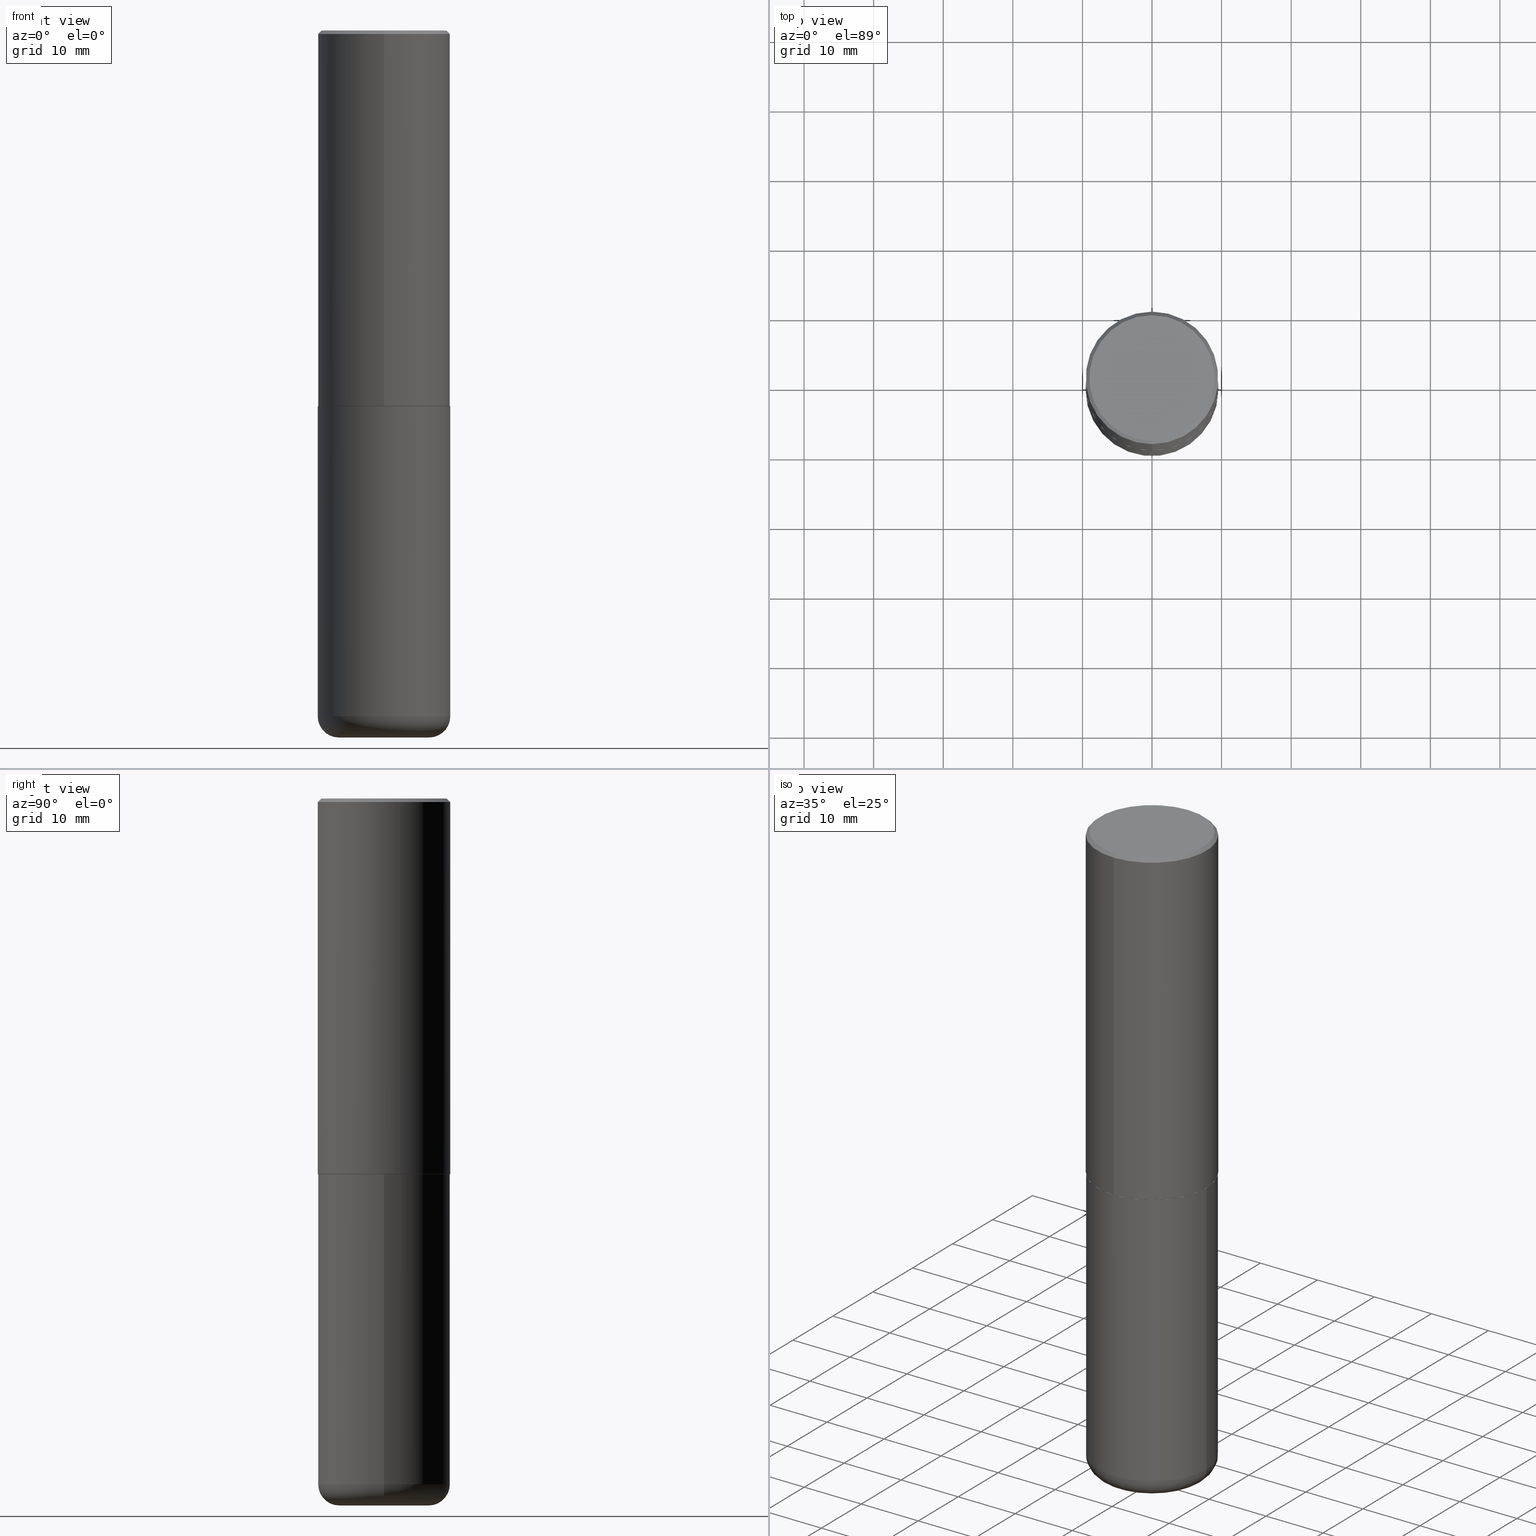
[diagram: canonical four-view strip — front | top / right | iso, engineering-drawing reading convention]
A machine part, canonical four-view strip (front | top / right | iso — engineering-drawing reading convention). The complete STEP part file that produces these views, byte-faithful:
ISO-10303-21;
HEADER;
FILE_DESCRIPTION (( 'STEP AP203' ),
    '1' );
FILE_NAME ('77257.STEP',
    '2024-03-06T16:41:39',
    ( '' ),
    ( '' ),
    'SwSTEP 2.0',
    'SolidWorks 2023',
    '' );
FILE_SCHEMA (( 'CONFIG_CONTROL_DESIGN' ));
ENDSEC;

DATA;
#1 = VERTEX_POINT ( 'NONE', #11 ) ;
#2 = DIRECTION ( 'NONE',  ( -6.982962677686265922E-15, -1.000000000000000000, 3.492725745712017407E-15 ) ) ;
#3 = DIRECTION ( 'NONE',  ( -2.445468806185136877E-29, 3.491481338843145188E-15, 1.000000000000000000 ) ) ;
#4 = PERSON_AND_ORGANIZATION ( #336, #333 ) ;
#5 = CIRCLE ( 'NONE', #402, 0.3750000000000002776 ) ;
#6 = EDGE_LOOP ( 'NONE', ( #59, #84 ) ) ;
#7 = ORIENTED_EDGE ( 'NONE', *, *, #187, .F. ) ;
#8 = VERTEX_POINT ( 'NONE', #155 ) ;
#9 = TOROIDAL_SURFACE ( 'NONE', #83, 0.2550000000000000044, 0.1200000000000001898 ) ;
#10 = PERSON_AND_ORGANIZATION ( #336, #333 ) ;
#11 = CARTESIAN_POINT ( 'NONE',  ( 2.548781377355487507E-15, 0.3549999999999999822, -1.175448187937810043E-15 ) ) ;
#12 = CARTESIAN_POINT ( 'NONE',  ( 5.196621213143415268E-29, -7.419397845041683624E-15, -2.125000000000000000 ) ) ;
#13 = AXIS2_PLACEMENT_3D ( 'NONE', #89, #291, #181 ) ;
#14 = ORIENTED_EDGE ( 'NONE', *, *, #87, .F. ) ;
#15 = DATE_AND_TIME ( #378, #185 ) ;
#16 = EDGE_CURVE ( 'NONE', #347, #224, #57, .T. ) ;
#17 = DIRECTION ( 'NONE',  ( -2.445468806185136597E-29, 3.491481338843145583E-15, 1.000000000000000000 ) ) ;
#18 = FACE_OUTER_BOUND ( 'NONE', #213, .T. ) ;
#19 = CARTESIAN_POINT ( 'NONE',  ( 0.000000000000000000, 0.000000000000000000, 0.000000000000000000 ) ) ;
#20 = ORIENTED_EDGE ( 'NONE', *, *, #364, .T. ) ;
#21 = DIRECTION ( 'NONE',  ( 7.105427357601001859E-15, 1.000000000000000000, -3.491481338843145583E-15 ) ) ;
#22 = AXIS2_PLACEMENT_3D ( 'NONE', #19, #141, #312 ) ;
#23 = EDGE_CURVE ( 'NONE', #8, #409, #415, .T. ) ;
#24 = DIRECTION ( 'NONE',  ( 1.000000000000000000, -6.982962677686263555E-15, 4.883557194083111219E-29 ) ) ;
#25 = DIRECTION ( 'NONE',  ( -2.445468806185136597E-29, 3.491481338843145583E-15, 1.000000000000000000 ) ) ;
#26 = ORIENTED_EDGE ( 'NONE', *, *, #159, .T. ) ;
#27 = DIRECTION ( 'NONE',  ( -6.982962677686265922E-15, -1.000000000000000000, 3.492725745712017407E-15 ) ) ;
#28 = VECTOR ( 'NONE', #46, 39.37007874015748143 ) ;
#29 = EDGE_LOOP ( 'NONE', ( #331, #92, #234, #305 ) ) ;
#30 = CARTESIAN_POINT ( 'NONE',  ( 2.657429831742826359E-15, 0.3739999999999925606, -2.125000000000001332 ) ) ;
#31 =( CONVERSION_BASED_UNIT ( 'INCH', #396 ) LENGTH_UNIT ( ) NAMED_UNIT ( #355 ) );
#32 = ORIENTED_EDGE ( 'NONE', *, *, #85, .F. ) ;
#33 = AXIS2_PLACEMENT_3D ( 'NONE', #282, #113, #381 ) ;
#34 = ADVANCED_FACE ( 'NONE', ( #179 ), #375, .T. ) ;
#35 = AXIS2_PLACEMENT_3D ( 'NONE', #97, #369, #2 ) ;
#36 = COORDINATED_UNIVERSAL_TIME_OFFSET ( 5, 0, .BEHIND. ) ;
#37 = VERTEX_POINT ( 'NONE', #418 ) ;
#38 =( NAMED_UNIT ( * ) SI_UNIT ( $, .STERADIAN. ) SOLID_ANGLE_UNIT ( ) );
#39 = FACE_OUTER_BOUND ( 'NONE', #321, .T. ) ;
#40 = VERTEX_POINT ( 'NONE', #327 ) ;
#41 = DIRECTION ( 'NONE',  ( 1.000000000000000000, 0.000000000000000000, 0.000000000000000000 ) ) ;
#42 = DIRECTION ( 'NONE',  ( 2.438088387897960049E-29, -3.491481338843145188E-15, -1.000000000000000000 ) ) ;
#43 = AXIS2_PLACEMENT_3D ( 'NONE', #44, #350, #157 ) ;
#44 = CARTESIAN_POINT ( 'NONE',  ( 9.488418967998330085E-29, -1.354694759471140570E-14, -3.880000000000000338 ) ) ;
#45 = CC_DESIGN_DATE_AND_TIME_ASSIGNMENT ( #76, #373, ( #72 ) ) ;
#46 = DIRECTION ( 'NONE',  ( -2.444599841513017620E-29, 3.492725745712018196E-15, 1.000000000000000000 ) ) ;
#47 = ADVANCED_FACE ( 'NONE', ( #39 ), #266, .T. ) ;
#48 = PERSON_AND_ORGANIZATION_ROLE ( 'design_supplier' ) ;
#49 = ORIENTED_EDGE ( 'NONE', *, *, #138, .F. ) ;
#50 = FACE_OUTER_BOUND ( 'NONE', #78, .T. ) ;
#51 = CIRCLE ( 'NONE', #278, 0.3750000000000001110 ) ;
#52 = CIRCLE ( 'NONE', #160, 0.3739999999999999991 ) ;
#53 = ORIENTED_EDGE ( 'NONE', *, *, #324, .F. ) ;
#54 = APPROVAL_DATE_TIME ( #15, #314 ) ;
#55 = ORIENTED_EDGE ( 'NONE', *, *, #335, .F. ) ;
#56 = CARTESIAN_POINT ( 'NONE',  ( 0.2550000000000000044, -1.574658083818258381E-14, -4.000000000000000888 ) ) ;
#57 = CIRCLE ( 'NONE', #208, 0.3750000000000002776 ) ;
#58 = AXIS2_PLACEMENT_3D ( 'NONE', #63, #189, #183 ) ;
#59 = ORIENTED_EDGE ( 'NONE', *, *, #364, .F. ) ;
#60 = EDGE_LOOP ( 'NONE', ( #390, #26 ) ) ;
#61 = AXIS2_PLACEMENT_3D ( 'NONE', #262, #69, #65 ) ;
#62 = FACE_OUTER_BOUND ( 'NONE', #392, .T. ) ;
#63 = CARTESIAN_POINT ( 'NONE',  ( 5.196621213143415268E-29, -7.419397845041683624E-15, -2.125000000000000000 ) ) ;
#64 = VECTOR ( 'NONE', #3, 39.37007874015748143 ) ;
#65 = DIRECTION ( 'NONE',  ( 1.000000000000000000, -6.982962677686265922E-15, 4.876176775795935793E-29 ) ) ;
#66 = VERTEX_POINT ( 'NONE', #362 ) ;
#67 = DIRECTION ( 'NONE',  ( -2.445468806185136877E-29, 3.491481338843145188E-15, 1.000000000000000000 ) ) ;
#68 = DIRECTION ( 'NONE',  ( -2.444599841513017620E-29, 3.492725745712017802E-15, 1.000000000000000000 ) ) ;
#69 = DIRECTION ( 'NONE',  ( -2.445468806185136597E-29, 3.491481338843145583E-15, 1.000000000000000000 ) ) ;
#70 = EDGE_LOOP ( 'NONE', ( #329, #239, #246, #14 ) ) ;
#71 =( GEOMETRIC_REPRESENTATION_CONTEXT ( 3 ) GLOBAL_UNCERTAINTY_ASSIGNED_CONTEXT ( ( #163 ) ) GLOBAL_UNIT_ASSIGNED_CONTEXT ( ( #31, #182, #38 ) ) REPRESENTATION_CONTEXT ( 'NONE', 'WORKASPACE' ) );
#72 = SECURITY_CLASSIFICATION ( '', '', #401 ) ;
#73 = CARTESIAN_POINT ( 'NONE',  ( 4.889199683026055945E-31, -6.985451491424065481E-17, -0.02000000000000008715 ) ) ;
#74 = DIRECTION ( 'NONE',  ( -2.445468806185136597E-29, 3.491481338843145583E-15, 1.000000000000000000 ) ) ;
#75 = PRODUCT ( '77257', '77257', '', ( #96 ) ) ;
#76 = DATE_AND_TIME ( #340, #259 ) ;
#77 = DESIGN_CONTEXT ( 'detailed design', #310, 'design' ) ;
#78 = EDGE_LOOP ( 'NONE', ( #7, #261, #111, #116 ) ) ;
#79 = AXIS2_PLACEMENT_3D ( 'NONE', #100, #367, #156 ) ;
#80 = ORIENTED_EDGE ( 'NONE', *, *, #85, .T. ) ;
#81 = DIRECTION ( 'NONE',  ( -6.982962677686266711E-15, -1.000000000000000000, 3.652203200085913145E-15 ) ) ;
#82 = DIRECTION ( 'NONE',  ( -2.445468806185136597E-29, 3.491481338843145583E-15, 1.000000000000000000 ) ) ;
#83 = AXIS2_PLACEMENT_3D ( 'NONE', #178, #74, #24 ) ;
#84 = ORIENTED_EDGE ( 'NONE', *, *, #370, .F. ) ;
#85 = EDGE_CURVE ( 'NONE', #1, #8, #122, .T. ) ;
#86 = ORIENTED_EDGE ( 'NONE', *, *, #265, .F. ) ;
#87 = EDGE_CURVE ( 'NONE', #37, #224, #164, .T. ) ;
#88 = FACE_OUTER_BOUND ( 'NONE', #60, .T. ) ;
#89 = CARTESIAN_POINT ( 'NONE',  ( 0.000000000000000000, 0.000000000000000000, 0.000000000000000000 ) ) ;
#90 = APPROVAL_DATE_TIME ( #251, #374 ) ;
#91 = CARTESIAN_POINT ( 'NONE',  ( 0.3750000000000001110, -1.616555859884375729E-14, -3.880000000000000338 ) ) ;
#92 = ORIENTED_EDGE ( 'NONE', *, *, #187, .T. ) ;
#93 = AXIS2_PLACEMENT_3D ( 'NONE', #140, #204, #299 ) ;
#94 = AXIS2_PLACEMENT_3D ( 'NONE', #231, #25, #293 ) ;
#95 = ORIENTED_EDGE ( 'NONE', *, *, #102, .T. ) ;
#96 = MECHANICAL_CONTEXT ( 'NONE', #205, 'mechanical' ) ;
#97 = CARTESIAN_POINT ( 'NONE',  ( -1.576020116281570290E-45, 2.251741140787182714E-31, 6.446945178995578068E-17 ) ) ;
#98 = CARTESIAN_POINT ( 'NONE',  ( 2.618611004132351200E-15, 0.3750000000000000555, -0.02000000000000139513 ) ) ;
#99 = DIRECTION ( 'NONE',  ( 6.982962677686265922E-15, 1.000000000000000000, -3.494488891895535640E-15 ) ) ;
#100 = CARTESIAN_POINT ( 'NONE',  ( 4.889199683026055945E-31, -6.985451491424065481E-17, -0.02000000000000008715 ) ) ;
#101 = LOCAL_TIME ( 11, 41, 39.00000000000000000, #287 ) ;
#102 = EDGE_CURVE ( 'NONE', #409, #8, #51, .T. ) ;
#103 = LINE ( 'NONE', #338, #318 ) ;
#104 = PERSON_AND_ORGANIZATION_ROLE ( 'creator' ) ;
#105 = ORIENTED_EDGE ( 'NONE', *, *, #399, .F. ) ;
#106 = DIRECTION ( 'NONE',  ( -2.445468806185136597E-29, 3.491481338843145583E-15, 1.000000000000000000 ) ) ;
#107 = FACE_OUTER_BOUND ( 'NONE', #194, .T. ) ;
#108 = APPROVAL_STATUS ( 'not_yet_approved' ) ;
#109 = APPROVAL_STATUS ( 'not_yet_approved' ) ;
#110 = CC_DESIGN_APPROVAL ( #342, ( #365 ) ) ;
#111 = ORIENTED_EDGE ( 'NONE', *, *, #320, .T. ) ;
#112 = VERTEX_POINT ( 'NONE', #56 ) ;
#113 = DIRECTION ( 'NONE',  ( -2.444599841513017620E-29, 3.492725745712017802E-15, 1.000000000000000000 ) ) ;
#114 = ADVANCED_FACE ( 'NONE', ( #275 ), #388, .T. ) ;
#115 = AXIS2_PLACEMENT_3D ( 'NONE', #285, #298, #352 ) ;
#116 = ORIENTED_EDGE ( 'NONE', *, *, #159, .F. ) ;
#117 = CARTESIAN_POINT ( 'NONE',  ( -0.3750000000000000555, 2.664535259100376091E-15, -1.844600658845589598E-29 ) ) ;
#118 = LINE ( 'NONE', #212, #235 ) ;
#119 = AXIS2_PLACEMENT_3D ( 'NONE', #171, #277, #243 ) ;
#120 = AXIS2_PLACEMENT_3D ( 'NONE', #341, #309, #167 ) ;
#121 = ORIENTED_EDGE ( 'NONE', *, *, #16, .T. ) ;
#122 = LINE ( 'NONE', #98, #219 ) ;
#123 = CALENDAR_DATE ( 2024, 6, 3 ) ;
#124 =( LENGTH_UNIT ( ) NAMED_UNIT ( * ) SI_UNIT ( $, .METRE. ) );
#125 = ORIENTED_EDGE ( 'NONE', *, *, #283, .F. ) ;
#126 = CARTESIAN_POINT ( 'NONE',  ( 0.3750000000000000555, -2.618611004132350016E-15, 1.828566290923476203E-29 ) ) ;
#127 = CARTESIAN_POINT ( 'NONE',  ( -0.3750000000000001110, -1.088241233561102684E-14, -3.880000000000000338 ) ) ;
#128 = CARTESIAN_POINT ( 'NONE',  ( 2.664535259100376880E-15, 0.3750000000000002220, -1.309772154642007612E-15 ) ) ;
#129 = DATE_TIME_ROLE ( 'creation_date' ) ;
#130 = AXIS2_PLACEMENT_3D ( 'NONE', #73, #196, #99 ) ;
#131 = CARTESIAN_POINT ( 'NONE',  ( -0.2550000000000000044, -1.151822685739767881E-14, -4.000000000000000888 ) ) ;
#132 = CIRCLE ( 'NONE', #35, 0.3549999999999999822 ) ;
#133 = CC_DESIGN_PERSON_AND_ORGANIZATION_ASSIGNMENT ( #263, #268, ( #72 ) ) ;
#134 = DIRECTION ( 'NONE',  ( -2.445468806185136597E-29, 3.491481338843145583E-15, 1.000000000000000000 ) ) ;
#135 = EDGE_CURVE ( 'NONE', #151, #386, #242, .T. ) ;
#136 = ORIENTED_EDGE ( 'NONE', *, *, #135, .T. ) ;
#137 = CARTESIAN_POINT ( 'NONE',  ( -0.2550000000000000044, -1.173506361852314940E-14, -3.880000000000000338 ) ) ;
#138 = EDGE_CURVE ( 'NONE', #347, #8, #356, .T. ) ;
#139 = EDGE_CURVE ( 'NONE', #40, #217, #363, .T. ) ;
#140 = CARTESIAN_POINT ( 'NONE',  ( 2.478951750578624209E-15, 0.3549999999999999822, -1.207682913832788389E-15 ) ) ;
#141 = DIRECTION ( 'NONE',  ( -2.444599841513017620E-29, 3.492725745712017802E-15, 1.000000000000000000 ) ) ;
#142 = ORIENTED_EDGE ( 'NONE', *, *, #283, .T. ) ;
#143 = APPROVAL_PERSON_ORGANIZATION ( #4, #374, #389 ) ;
#144 = AXIS2_PLACEMENT_3D ( 'NONE', #236, #134, #372 ) ;
#145 = EDGE_CURVE ( 'NONE', #37, #66, #52, .T. ) ;
#146 = EDGE_LOOP ( 'NONE', ( #382, #222 ) ) ;
#147 = ORIENTED_EDGE ( 'NONE', *, *, #324, .T. ) ;
#148 = APPLICATION_PROTOCOL_DEFINITION ( 'international standard', 'config_control_design', 1994, #205 ) ;
#149 = CLOSED_SHELL ( 'NONE', ( #114, #286, #47, #250, #177, #34, #344, #152 ) ) ;
#150 = AXIS2_PLACEMENT_3D ( 'NONE', #404, #17, #227 ) ;
#151 = VERTEX_POINT ( 'NONE', #131 ) ;
#152 = ADVANCED_FACE ( 'NONE', ( #18 ), #201, .F. ) ;
#153 = CARTESIAN_POINT ( 'NONE',  ( -2.572686749164324336E-15, -0.3750000000000001665, -0.01999999999999877570 ) ) ;
#154 = FACE_OUTER_BOUND ( 'NONE', #6, .T. ) ;
#155 = CARTESIAN_POINT ( 'NONE',  ( 2.618611004132351200E-15, 0.3750000000000000555, -0.02000000000000139513 ) ) ;
#156 = DIRECTION ( 'NONE',  ( 6.982962677686265922E-15, 1.000000000000000000, -3.494488891895535640E-15 ) ) ;
#157 = DIRECTION ( 'NONE',  ( 1.000000000000000000, -6.982962677686266711E-15, 0.000000000000000000 ) ) ;
#158 = DIRECTION ( 'NONE',  ( -1.000000000000000000, 6.982962677686265922E-15, -4.876176775795935793E-29 ) ) ;
#159 = EDGE_CURVE ( 'NONE', #217, #40, #200, .T. ) ;
#160 = AXIS2_PLACEMENT_3D ( 'NONE', #308, #232, #81 ) ;
#161 = ADVANCED_FACE ( 'NONE', ( #270 ), #184, .T. ) ;
#162 = COORDINATED_UNIVERSAL_TIME_OFFSET ( 5, 0, .BEHIND. ) ;
#163 = UNCERTAINTY_MEASURE_WITH_UNIT (LENGTH_MEASURE( 1.000000000000000082E-05 ), #31, 'distance_accuracy_value', 'NONE');
#164 = LINE ( 'NONE', #411, #316 ) ;
#165 = CLOSED_SHELL ( 'NONE', ( #397, #161, #412, #269, #311, #300 ) ) ;
#166 = CONICAL_SURFACE ( 'NONE', #79, 0.3750000000000001110, 0.7853981633974477239 ) ;
#167 = DIRECTION ( 'NONE',  ( 1.000000000000000000, -6.982962677686263555E-15, 4.883557194083111219E-29 ) ) ;
#168 = DATE_AND_TIME ( #289, #403 ) ;
#169 = DIRECTION ( 'NONE',  ( 1.000000000000000000, -6.982962677686266711E-15, 0.000000000000000000 ) ) ;
#170 = ORIENTED_EDGE ( 'NONE', *, *, #306, .F. ) ;
#171 = CARTESIAN_POINT ( 'NONE',  ( 4.889199683026055945E-31, -6.985451491424065481E-17, -0.02000000000000008715 ) ) ;
#172 = COORDINATED_UNIVERSAL_TIME_OFFSET ( 5, 0, .BEHIND. ) ;
#173 = DIRECTION ( 'NONE',  ( -6.982962677686266711E-15, -1.000000000000000000, 3.491481338843145583E-15 ) ) ;
#174 = ORIENTED_EDGE ( 'NONE', *, *, #383, .F. ) ;
#175 = AXIS2_PLACEMENT_3D ( 'NONE', #193, #42, #158 ) ;
#176 = CARTESIAN_POINT ( 'NONE',  ( 2.664535259100402913E-15, 0.3749999999999928391, -2.124000000000000998 ) ) ;
#177 = ADVANCED_FACE ( 'NONE', ( #107 ), #233, .T. ) ;
#178 = CARTESIAN_POINT ( 'NONE',  ( 9.488418967998330085E-29, -1.354694759471140570E-14, -3.880000000000000338 ) ) ;
#179 = FACE_OUTER_BOUND ( 'NONE', #407, .T. ) ;
#180 = PLANE ( 'NONE',  #115 ) ;
#181 = DIRECTION ( 'NONE',  ( -6.982962677686266711E-15, -1.000000000000000000, 3.492725745712018196E-15 ) ) ;
#182 =( NAMED_UNIT ( * ) PLANE_ANGLE_UNIT ( ) SI_UNIT ( $, .RADIAN. ) );
#183 = DIRECTION ( 'NONE',  ( -1.000000000000000000, 6.982962677686265922E-15, -4.876176775795935793E-29 ) ) ;
#184 = TOROIDAL_SURFACE ( 'NONE', #120, 0.2550000000000000044, 0.1200000000000001898 ) ;
#185 = LOCAL_TIME ( 11, 41, 39.00000000000000000, #172 ) ;
#186 = ORIENTED_EDGE ( 'NONE', *, *, #319, .T. ) ;
#187 = EDGE_CURVE ( 'NONE', #386, #217, #385, .T. ) ;
#188 = CYLINDRICAL_SURFACE ( 'NONE', #13, 0.3750000000000002220 ) ;
#189 = DIRECTION ( 'NONE',  ( 2.438088387897960049E-29, -3.491481338843145188E-15, -1.000000000000000000 ) ) ;
#190 = ORIENTED_EDGE ( 'NONE', *, *, #135, .F. ) ;
#191 = DIRECTION ( 'NONE',  ( -6.982962677686266711E-15, -1.000000000000000000, 3.642463991552348591E-15 ) ) ;
#192 = CARTESIAN_POINT ( 'NONE',  ( 0.000000000000000000, 0.000000000000000000, 0.000000000000000000 ) ) ;
#193 = CARTESIAN_POINT ( 'NONE',  ( 3.797124611134382385E-29, -2.253642886490752288E-14, -4.000000000000000000 ) ) ;
#194 = EDGE_LOOP ( 'NONE', ( #49, #121, #241, #255 ) ) ;
#195 = CC_DESIGN_APPROVAL ( #314, ( #72 ) ) ;
#196 = DIRECTION ( 'NONE',  ( 2.444599841513017620E-29, -3.492725745712017802E-15, -1.000000000000000000 ) ) ;
#197 = PLANE ( 'NONE',  #175 ) ;
#198 = ORIENTED_EDGE ( 'NONE', *, *, #16, .F. ) ;
#199 = APPROVAL_ROLE ( '' ) ;
#200 = CIRCLE ( 'NONE', #144, 0.3750000000000000555 ) ;
#201 = PLANE ( 'NONE',  #93 ) ;
#202 = PRODUCT_DEFINITION ( 'UNKNOWN', '', #365, #77 ) ;
#203 = PERSON_AND_ORGANIZATION ( #336, #333 ) ;
#204 = DIRECTION ( 'NONE',  ( 2.444599841513016780E-29, -3.492725745712018196E-15, -1.000000000000000000 ) ) ;
#205 = APPLICATION_CONTEXT ( 'configuration controlled 3d designs of mechanical parts and assemblies' ) ;
#206 = CARTESIAN_POINT ( 'NONE',  ( 4.889199683026055945E-31, -6.985451491424065481E-17, -0.02000000000000008715 ) ) ;
#207 = EDGE_CURVE ( 'NONE', #66, #37, #209, .T. ) ;
#208 = AXIS2_PLACEMENT_3D ( 'NONE', #398, #295, #229 ) ;
#209 = CIRCLE ( 'NONE', #325, 0.3739999999999999991 ) ;
#210 = CC_DESIGN_PERSON_AND_ORGANIZATION_ASSIGNMENT ( #203, #104, ( #365 ) ) ;
#211 = AXIS2_PLACEMENT_3D ( 'NONE', #326, #218, #223 ) ;
#212 = CARTESIAN_POINT ( 'NONE',  ( -2.572686749164324336E-15, -0.3750000000000001665, -0.01999999999999877570 ) ) ;
#213 = EDGE_LOOP ( 'NONE', ( #142, #371 ) ) ;
#214 = MANIFOLD_SOLID_BREP ( 'Body-Move/Copy2[1]', #165 ) ;
#215 = CARTESIAN_POINT ( 'NONE',  ( 9.488418967998330085E-29, -1.354694759471140570E-14, -3.880000000000000338 ) ) ;
#216 = PERSON_AND_ORGANIZATION ( #336, #333 ) ;
#217 = VERTEX_POINT ( 'NONE', #303 ) ;
#218 = DIRECTION ( 'NONE',  ( -2.445468806185136597E-29, 3.491481338843145583E-15, 1.000000000000000000 ) ) ;
#219 = VECTOR ( 'NONE', #274, 39.37007874015748143 ) ;
#220 = AXIS2_PLACEMENT_3D ( 'NONE', #413, #276, #240 ) ;
#221 = CC_DESIGN_PERSON_AND_ORGANIZATION_ASSIGNMENT ( #230, #48, ( #365 ) ) ;
#222 = ORIENTED_EDGE ( 'NONE', *, *, #207, .F. ) ;
#223 = DIRECTION ( 'NONE',  ( 1.000000000000000000, -6.982962677686267499E-15, 0.000000000000000000 ) ) ;
#224 = VERTEX_POINT ( 'NONE', #253 ) ;
#225 = ORIENTED_EDGE ( 'NONE', *, *, #102, .F. ) ;
#226 = CC_DESIGN_DATE_AND_TIME_ASSIGNMENT ( #168, #129, ( #202 ) ) ;
#227 = DIRECTION ( 'NONE',  ( 1.000000000000000000, -6.982962677686265922E-15, 4.876176775795935793E-29 ) ) ;
#228 = PERSON_AND_ORGANIZATION ( #336, #333 ) ;
#229 = DIRECTION ( 'NONE',  ( -6.982962677686266711E-15, -1.000000000000000000, 3.642463991552348591E-15 ) ) ;
#230 = PERSON_AND_ORGANIZATION ( #336, #333 ) ;
#231 = CARTESIAN_POINT ( 'NONE',  ( 9.781875224740547508E-29, -1.396592535537258391E-14, -4.000000000000000888 ) ) ;
#232 = DIRECTION ( 'NONE',  ( -2.444599841513017620E-29, 3.492725745712017802E-15, 1.000000000000000000 ) ) ;
#233 = CYLINDRICAL_SURFACE ( 'NONE', #22, 0.3750000000000002220 ) ;
#234 = ORIENTED_EDGE ( 'NONE', *, *, #139, .F. ) ;
#235 = VECTOR ( 'NONE', #257, 39.37007874015748143 ) ;
#236 = CARTESIAN_POINT ( 'NONE',  ( 5.196621213143415268E-29, -7.419397845041683624E-15, -2.125000000000000000 ) ) ;
#237 = DIRECTION ( 'NONE',  ( -6.982962677686266711E-15, -1.000000000000000000, 3.652203200085913145E-15 ) ) ;
#238 = COORDINATED_UNIVERSAL_TIME_OFFSET ( 5, 0, .BEHIND. ) ;
#239 = ORIENTED_EDGE ( 'NONE', *, *, #335, .T. ) ;
#240 = DIRECTION ( 'NONE',  ( -6.982962677686266711E-15, -1.000000000000000000, 3.652203200085913145E-15 ) ) ;
#241 = ORIENTED_EDGE ( 'NONE', *, *, #265, .T. ) ;
#242 = CIRCLE ( 'NONE', #315, 0.1200000000000002176 ) ;
#243 = DIRECTION ( 'NONE',  ( -6.982962677686265922E-15, -1.000000000000000000, 3.494488891895535640E-15 ) ) ;
#244 = FACE_OUTER_BOUND ( 'NONE', #358, .T. ) ;
#245 = ORIENTED_EDGE ( 'NONE', *, *, #23, .T. ) ;
#246 = ORIENTED_EDGE ( 'NONE', *, *, #319, .F. ) ;
#247 = VECTOR ( 'NONE', #387, 39.37007874015748143 ) ;
#248 = APPROVAL_STATUS ( 'not_yet_approved' ) ;
#249 = APPROVAL_PERSON_ORGANIZATION ( #228, #342, #361 ) ;
#250 = ADVANCED_FACE ( 'NONE', ( #292 ), #166, .T. ) ;
#251 = DATE_AND_TIME ( #123, #101 ) ;
#252 = ORIENTED_EDGE ( 'NONE', *, *, #87, .T. ) ;
#253 = CARTESIAN_POINT ( 'NONE',  ( -2.618611004132299924E-15, -0.3750000000000077716, -2.123999999999998334 ) ) ;
#254 = EDGE_CURVE ( 'NONE', #386, #393, #280, .T. ) ;
#255 = ORIENTED_EDGE ( 'NONE', *, *, #23, .F. ) ;
#256 = CARTESIAN_POINT ( 'NONE',  ( -2.504081769186608610E-15, -0.3549999999999999822, 1.304387091517721851E-15 ) ) ;
#257 = DIRECTION ( 'NONE',  ( -4.851104656540961119E-15, -0.7071067811865495711, -0.7071067811865454633 ) ) ;
#258 = CIRCLE ( 'NONE', #211, 0.2550000000000000044 ) ;
#259 = LOCAL_TIME ( 11, 41, 39.00000000000000000, #238 ) ;
#260 = CC_DESIGN_PERSON_AND_ORGANIZATION_ASSIGNMENT ( #216, #351, ( #202 ) ) ;
#261 = ORIENTED_EDGE ( 'NONE', *, *, #254, .T. ) ;
#262 = CARTESIAN_POINT ( 'NONE',  ( 0.000000000000000000, 0.000000000000000000, 0.000000000000000000 ) ) ;
#263 = PERSON_AND_ORGANIZATION ( #336, #333 ) ;
#264 = DATE_AND_TIME ( #271, #349 ) ;
#265 = EDGE_CURVE ( 'NONE', #224, #409, #103, .T. ) ;
#266 = CONICAL_SURFACE ( 'NONE', #130, 0.3750000000000001110, 0.7853981633974477239 ) ;
#267 = CIRCLE ( 'NONE', #394, 0.3549999999999999822 ) ;
#268 = PERSON_AND_ORGANIZATION_ROLE ( 'classification_officer' ) ;
#269 = ADVANCED_FACE ( 'NONE', ( #50 ), #334, .T. ) ;
#270 = FACE_OUTER_BOUND ( 'NONE', #290, .T. ) ;
#271 = CALENDAR_DATE ( 2024, 6, 3 ) ;
#272 = DIRECTION ( 'NONE',  ( 1.000000000000000000, -6.982962677686266711E-15, 0.000000000000000000 ) ) ;
#273 = DIRECTION ( 'NONE',  ( -2.444599841513017620E-29, 3.492725745712017802E-15, 1.000000000000000000 ) ) ;
#274 = DIRECTION ( 'NONE',  ( 4.937700262164544887E-15, 0.7071067811865446862, -0.7071067811865503483 ) ) ;
#275 = FACE_OUTER_BOUND ( 'NONE', #70, .T. ) ;
#276 = DIRECTION ( 'NONE',  ( -2.444599841513017620E-29, 3.492725745712017802E-15, 1.000000000000000000 ) ) ;
#277 = DIRECTION ( 'NONE',  ( -2.444599841513017620E-29, 3.492725745712017802E-15, 1.000000000000000000 ) ) ;
#278 = AXIS2_PLACEMENT_3D ( 'NONE', #206, #302, #405 ) ;
#279 = AXIS2_PLACEMENT_3D ( 'NONE', #215, #106, #169 ) ;
#280 = CIRCLE ( 'NONE', #279, 0.3750000000000000555 ) ;
#281 = CC_DESIGN_PERSON_AND_ORGANIZATION_ASSIGNMENT ( #10, #332, ( #75 ) ) ;
#282 = CARTESIAN_POINT ( 'NONE',  ( 5.194774663215162724E-29, -7.422042209638035708E-15, -2.125000000000000000 ) ) ;
#283 = EDGE_CURVE ( 'NONE', #1, #288, #132, .T. ) ;
#284 = LINE ( 'NONE', #126, #64 ) ;
#285 = CARTESIAN_POINT ( 'NONE',  ( 5.194774663215162724E-29, -7.422042209638035708E-15, -2.125000000000000000 ) ) ;
#286 = ADVANCED_FACE ( 'NONE', ( #62 ), #188, .T. ) ;
#287 = COORDINATED_UNIVERSAL_TIME_OFFSET ( 5, 0, .BEHIND. ) ;
#288 = VERTEX_POINT ( 'NONE', #256 ) ;
#289 = CALENDAR_DATE ( 2024, 6, 3 ) ;
#290 = EDGE_LOOP ( 'NONE', ( #20, #136, #174, #53 ) ) ;
#291 = DIRECTION ( 'NONE',  ( -2.444599841513017620E-29, 3.492725745712017802E-15, 1.000000000000000000 ) ) ;
#292 = FACE_OUTER_BOUND ( 'NONE', #379, .T. ) ;
#293 = DIRECTION ( 'NONE',  ( 1.000000000000000000, -6.982962677686267499E-15, 0.000000000000000000 ) ) ;
#294 = ORIENTED_EDGE ( 'NONE', *, *, #254, .F. ) ;
#295 = DIRECTION ( 'NONE',  ( -2.444599841513017620E-29, 3.492725745712017802E-15, 1.000000000000000000 ) ) ;
#296 = CARTESIAN_POINT ( 'NONE',  ( -1.576020116281570290E-45, 2.251741140787182714E-31, 6.446945178995578068E-17 ) ) ;
#297 = CC_DESIGN_SECURITY_CLASSIFICATION ( #72, ( #365 ) ) ;
#298 = DIRECTION ( 'NONE',  ( -2.444599841513016780E-29, 3.492725745712018196E-15, 1.000000000000000000 ) ) ;
#299 = DIRECTION ( 'NONE',  ( 6.982962677686265922E-15, 1.000000000000000000, -3.492725745712018196E-15 ) ) ;
#300 = ADVANCED_FACE ( 'NONE', ( #154 ), #197, .T. ) ;
#301 = AXIS2_PLACEMENT_3D ( 'NONE', #339, #173, #323 ) ;
#302 = DIRECTION ( 'NONE',  ( -2.444599841513017620E-29, 3.492725745712017802E-15, 1.000000000000000000 ) ) ;
#303 = CARTESIAN_POINT ( 'NONE',  ( -0.3750000000000000555, -7.818637460776168963E-15, -2.125000000000000000 ) ) ;
#304 = PERSON_AND_ORGANIZATION ( #336, #333 ) ;
#305 = ORIENTED_EDGE ( 'NONE', *, *, #320, .F. ) ;
#306 = EDGE_CURVE ( 'NONE', #288, #1, #267, .T. ) ;
#307 = DIRECTION ( 'NONE',  ( -2.444599841513017620E-29, 3.492725745712018196E-15, 1.000000000000000000 ) ) ;
#308 = CARTESIAN_POINT ( 'NONE',  ( 5.194774663215162724E-29, -7.422042209638035708E-15, -2.125000000000000000 ) ) ;
#309 = DIRECTION ( 'NONE',  ( -2.445468806185136597E-29, 3.491481338843145583E-15, 1.000000000000000000 ) ) ;
#310 = APPLICATION_CONTEXT ( 'configuration controlled 3d designs of mechanical parts and assemblies' ) ;
#311 = ADVANCED_FACE ( 'NONE', ( #244 ), #9, .T. ) ;
#312 = DIRECTION ( 'NONE',  ( -6.982962677686266711E-15, -1.000000000000000000, 3.492725745712018196E-15 ) ) ;
#313 = CARTESIAN_POINT ( 'NONE',  ( 5.194774663215162724E-29, -7.422042209638035708E-15, -2.125000000000000000 ) ) ;
#314 = APPROVAL ( #108, 'UNSPECIFIED' ) ;
#315 = AXIS2_PLACEMENT_3D ( 'NONE', #137, #21, #408 ) ;
#316 = VECTOR ( 'NONE', #380, 39.37007874015748143 ) ;
#317 = FACE_OUTER_BOUND ( 'NONE', #146, .T. ) ;
#318 = VECTOR ( 'NONE', #307, 39.37007874015748143 ) ;
#319 = EDGE_CURVE ( 'NONE', #224, #347, #5, .T. ) ;
#320 = EDGE_CURVE ( 'NONE', #393, #40, #284, .T. ) ;
#321 = EDGE_LOOP ( 'NONE', ( #170, #337, #95, #32 ) ) ;
#322 = PLANE ( 'NONE',  #58 ) ;
#323 = DIRECTION ( 'NONE',  ( 1.000000000000000000, -6.982962677686272233E-15, 0.000000000000000000 ) ) ;
#324 = EDGE_CURVE ( 'NONE', #112, #393, #410, .T. ) ;
#325 = AXIS2_PLACEMENT_3D ( 'NONE', #313, #273, #237 ) ;
#326 = CARTESIAN_POINT ( 'NONE',  ( 9.781875224740547508E-29, -1.396592535537258391E-14, -4.000000000000000888 ) ) ;
#327 = CARTESIAN_POINT ( 'NONE',  ( 0.3750000000000000555, -1.003800884917403364E-14, -2.125000000000000000 ) ) ;
#328 = ORIENTED_EDGE ( 'NONE', *, *, #207, .T. ) ;
#329 = ORIENTED_EDGE ( 'NONE', *, *, #145, .T. ) ;
#330 = DIRECTION ( 'NONE',  ( 0.000000000000000000, 0.000000000000000000, 1.000000000000000000 ) ) ;
#331 = ORIENTED_EDGE ( 'NONE', *, *, #383, .T. ) ;
#332 = PERSON_AND_ORGANIZATION_ROLE ( 'design_owner' ) ;
#333 = ORGANIZATION ( 'UNSPECIFIED', 'UNSPECIFIED', '' ) ;
#334 = CYLINDRICAL_SURFACE ( 'NONE', #150, 0.3750000000000000555 ) ;
#335 = EDGE_CURVE ( 'NONE', #66, #347, #346, .T. ) ;
#336 = PERSON ( 'UNSPECIFIED', 'UNSPECIFIED', 'UNSPECIFIED', ('UNSPECIFIED'), ('UNSPECIFIED'), ('UNSPECIFIED') ) ;
#337 = ORIENTED_EDGE ( 'NONE', *, *, #399, .T. ) ;
#338 = CARTESIAN_POINT ( 'NONE',  ( -2.618611004132351594E-15, -0.3750000000000002220, 1.309772154642007612E-15 ) ) ;
#339 = CARTESIAN_POINT ( 'NONE',  ( 0.2550000000000000044, -1.532760307752140402E-14, -3.880000000000000338 ) ) ;
#340 = CALENDAR_DATE ( 2024, 6, 3 ) ;
#341 = CARTESIAN_POINT ( 'NONE',  ( 9.488418967998330085E-29, -1.354694759471140570E-14, -3.880000000000000338 ) ) ;
#342 = APPROVAL ( #109, 'UNSPECIFIED' ) ;
#343 = PRODUCT_DEFINITION_SHAPE ( 'NONE', 'NONE',  #202 ) ;
#344 = ADVANCED_FACE ( 'NONE', ( #317 ), #180, .F. ) ;
#345 = AXIS2_PLACEMENT_3D ( 'NONE', #12, #82, #272 ) ;
#346 = LINE ( 'NONE', #30, #247 ) ;
#347 = VERTEX_POINT ( 'NONE', #176 ) ;
#348 = AXIS2_PLACEMENT_3D ( 'NONE', #192, #330, #41 ) ;
#349 = LOCAL_TIME ( 11, 41, 39.00000000000000000, #162 ) ;
#350 = DIRECTION ( 'NONE',  ( -2.445468806185136597E-29, 3.491481338843145583E-15, 1.000000000000000000 ) ) ;
#351 = PERSON_AND_ORGANIZATION_ROLE ( 'creator' ) ;
#352 = DIRECTION ( 'NONE',  ( -6.982962677686265922E-15, -1.000000000000000000, 3.492725745712018196E-15 ) ) ;
#353 = VECTOR ( 'NONE', #67, 39.37007874015748143 ) ;
#354 = CYLINDRICAL_SURFACE ( 'NONE', #61, 0.3750000000000000555 ) ;
#355 = DIMENSIONAL_EXPONENTS ( 1.000000000000000000, 0.000000000000000000, 0.000000000000000000, 0.000000000000000000, 0.000000000000000000, 0.000000000000000000, 0.000000000000000000 ) ;
#356 = LINE ( 'NONE', #128, #28 ) ;
#357 = APPLICATION_PROTOCOL_DEFINITION ( 'international standard', 'config_control_design', 1994, #310 ) ;
#358 = EDGE_LOOP ( 'NONE', ( #190, #366, #147, #294 ) ) ;
#359 = MANIFOLD_SOLID_BREP ( 'Body-Move/Copy2[2]', #149 ) ;
#360 = DIRECTION ( 'NONE',  ( -2.444599841513017620E-29, 3.492725745712017802E-15, 1.000000000000000000 ) ) ;
#361 = APPROVAL_ROLE ( '' ) ;
#362 = CARTESIAN_POINT ( 'NONE',  ( 2.660982545421628047E-15, 0.3739999999999925606, -2.125000000000001332 ) ) ;
#363 = CIRCLE ( 'NONE', #345, 0.3750000000000000555 ) ;
#364 = EDGE_CURVE ( 'NONE', #112, #151, #416, .T. ) ;
#365 = PRODUCT_DEFINITION_FORMATION_WITH_SPECIFIED_SOURCE ( 'ANY', '', #75, .NOT_KNOWN. ) ;
#366 = ORIENTED_EDGE ( 'NONE', *, *, #370, .T. ) ;
#367 = DIRECTION ( 'NONE',  ( 2.444599841513017620E-29, -3.492725745712017802E-15, -1.000000000000000000 ) ) ;
#368 = SHAPE_DEFINITION_REPRESENTATION ( #343, #414 ) ;
#370 = EDGE_CURVE ( 'NONE', #151, #112, #258, .T. ) ;
#369 = DIRECTION ( 'NONE',  ( -2.444599841513017620E-29, 3.492725745712017802E-15, 1.000000000000000000 ) ) ;
#371 = ORIENTED_EDGE ( 'NONE', *, *, #306, .T. ) ;
#372 = DIRECTION ( 'NONE',  ( 1.000000000000000000, -6.982962677686266711E-15, 0.000000000000000000 ) ) ;
#373 = DATE_TIME_ROLE ( 'classification_date' ) ;
#374 = APPROVAL ( #248, 'UNSPECIFIED' ) ;
#375 = CONICAL_SURFACE ( 'NONE', #33, 0.3739999999999999991, 0.7853981633975507526 ) ;
#376 = CIRCLE ( 'NONE', #43, 0.3750000000000000555 ) ;
#377 = APPROVAL_PERSON_ORGANIZATION ( #304, #314, #199 ) ;
#378 = CALENDAR_DATE ( 2024, 6, 3 ) ;
#379 = EDGE_LOOP ( 'NONE', ( #105, #125, #80, #245 ) ) ;
#380 = DIRECTION ( 'NONE',  ( -4.937700262165053702E-15, -0.7071067811866175168, 0.7071067811864775177 ) ) ;
#381 = DIRECTION ( 'NONE',  ( -6.982962677686266711E-15, -1.000000000000000000, 3.652203200085913145E-15 ) ) ;
#382 = ORIENTED_EDGE ( 'NONE', *, *, #145, .F. ) ;
#383 = EDGE_CURVE ( 'NONE', #393, #386, #376, .T. ) ;
#384 = ORIENTED_EDGE ( 'NONE', *, *, #138, .T. ) ;
#385 = LINE ( 'NONE', #117, #353 ) ;
#386 = VERTEX_POINT ( 'NONE', #127 ) ;
#387 = DIRECTION ( 'NONE',  ( 5.024295867788576727E-15, 0.7071067811866224018, 0.7071067811864726327 ) ) ;
#388 = CONICAL_SURFACE ( 'NONE', #220, 0.3739999999999999991, 0.7853981633975507526 ) ;
#389 = APPROVAL_ROLE ( '' ) ;
#390 = ORIENTED_EDGE ( 'NONE', *, *, #139, .T. ) ;
#391 = FACE_OUTER_BOUND ( 'NONE', #29, .T. ) ;
#392 = EDGE_LOOP ( 'NONE', ( #186, #384, #225, #86 ) ) ;
#393 = VERTEX_POINT ( 'NONE', #91 ) ;
#394 = AXIS2_PLACEMENT_3D ( 'NONE', #296, #360, #27 ) ;
#395 = CARTESIAN_POINT ( 'NONE',  ( 5.192330063373648592E-29, -7.418549483892325607E-15, -2.123999999999999666 ) ) ;
#396 = LENGTH_MEASURE_WITH_UNIT ( LENGTH_MEASURE( 0.02539999999999999897 ), #124 );
#397 = ADVANCED_FACE ( 'NONE', ( #391 ), #354, .T. ) ;
#398 = CARTESIAN_POINT ( 'NONE',  ( 5.192330063373648592E-29, -7.418549483892325607E-15, -2.123999999999999666 ) ) ;
#399 = EDGE_CURVE ( 'NONE', #288, #409, #118, .T. ) ;
#400 = PRODUCT_RELATED_PRODUCT_CATEGORY ( 'detail', '', ( #75 ) ) ;
#401 = SECURITY_CLASSIFICATION_LEVEL ( 'unclassified' ) ;
#402 = AXIS2_PLACEMENT_3D ( 'NONE', #395, #68, #191 ) ;
#403 = LOCAL_TIME ( 11, 41, 39.00000000000000000, #36 ) ;
#404 = CARTESIAN_POINT ( 'NONE',  ( 0.000000000000000000, 0.000000000000000000, 0.000000000000000000 ) ) ;
#405 = DIRECTION ( 'NONE',  ( -6.982962677686265922E-15, -1.000000000000000000, 3.494488891895535640E-15 ) ) ;
#406 = APPROVAL_DATE_TIME ( #264, #342 ) ;
#407 = EDGE_LOOP ( 'NONE', ( #55, #328, #252, #198 ) ) ;
#408 = DIRECTION ( 'NONE',  ( -1.000000000000000000, 7.105427357600994759E-15, 0.000000000000000000 ) ) ;
#409 = VERTEX_POINT ( 'NONE', #153 ) ;
#410 = CIRCLE ( 'NONE', #301, 0.1200000000000002176 ) ;
#411 = CARTESIAN_POINT ( 'NONE',  ( -2.611628041454611937E-15, -0.3740000000000074931, -2.124999999999998668 ) ) ;
#412 = ADVANCED_FACE ( 'NONE', ( #88 ), #322, .F. ) ;
#413 = CARTESIAN_POINT ( 'NONE',  ( 5.194774663215162724E-29, -7.422042209638035708E-15, -2.125000000000000000 ) ) ;
#414 = ADVANCED_BREP_SHAPE_REPRESENTATION ( '77257', ( #214, #359, #348 ), #71 ) ;
#415 = CIRCLE ( 'NONE', #119, 0.3750000000000001110 ) ;
#416 = CIRCLE ( 'NONE', #94, 0.2550000000000000044 ) ;
#417 = CC_DESIGN_APPROVAL ( #374, ( #202 ) ) ;
#418 = CARTESIAN_POINT ( 'NONE',  ( -2.611628041454611937E-15, -0.3740000000000074931, -2.124999999999998668 ) ) ;
ENDSEC;
END-ISO-10303-21;
